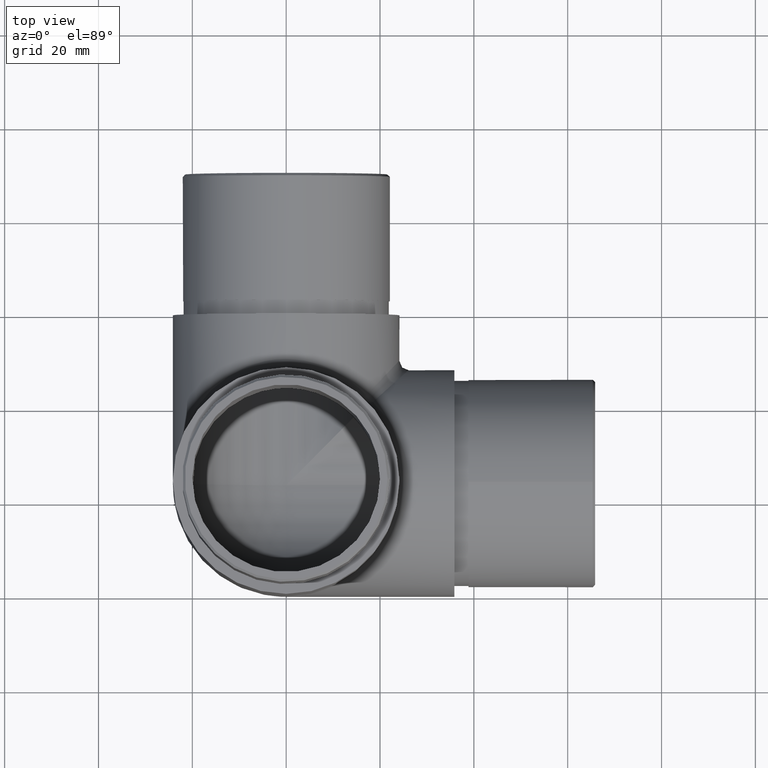
[diagram: clean part render]
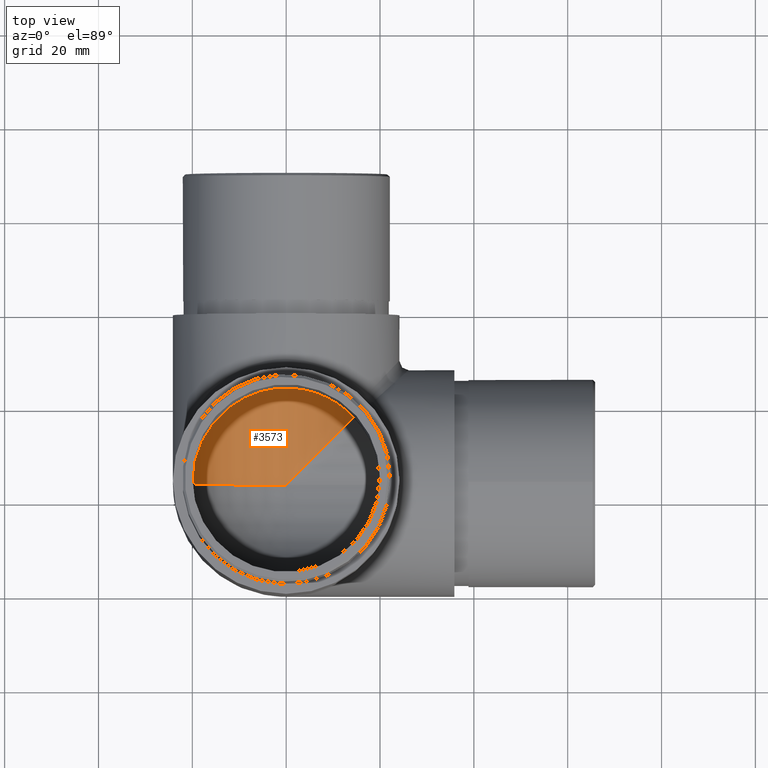
[diagram: same view with one face highlighted and labeled with its STEP entity id]
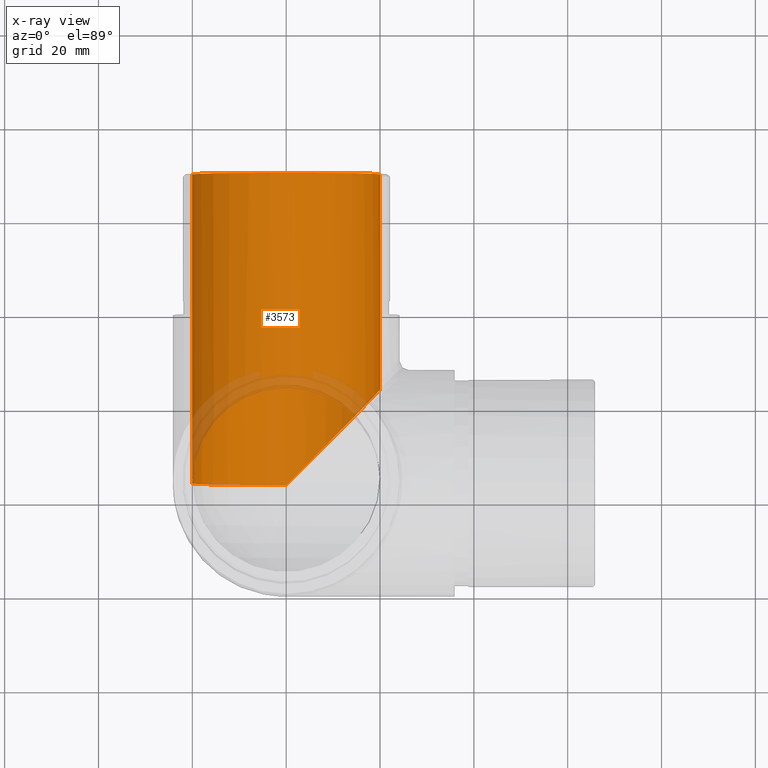
[diagram: x-ray of the same camera — body ghosted, the highlighted face saturated]
A machine part, top view. The second image highlights one B-rep face of the part: STEP entity #3573.
The next image is the same camera in x-ray: the body ghosted, the highlighted face saturated — about 7% of this face is hidden behind the body in this view.
In plain terms, the highlighted cylindrical surface (bore or boss wall) has radius 20 mm, axis along (-0, 1, -0).
Its self-contained STEP definition (entity closure, byte-faithful):
#5 = DIRECTION ( 'NONE',  ( 0.0000000000000000000, 0.0000000000000000000, 1.000000000000000000 ) ) ;
#563 = DIRECTION ( 'NONE',  ( -0.0000000000000000000, 1.000000000000000000, -0.0000000000000000000 ) ) ;
#656 = DIRECTION ( 'NONE',  ( 0.0000000000000000000, 0.0000000000000000000, 1.000000000000000000 ) ) ;
#945 = CARTESIAN_POINT ( 'NONE',  ( 20.00000000000000000, 90.00000000000000000, 24.14999999999996300 ) ) ;
#1288 = FACE_OUTER_BOUND ( 'NONE', #1629, .T. ) ;
#1629 = EDGE_LOOP ( 'NONE', ( #11823, #12114, #11708 ) ) ;
#1967 = DIRECTION ( 'NONE',  ( 1.000000000000000000, 0.0000000000000000000, 0.0000000000000000000 ) ) ;
#2274 = CARTESIAN_POINT ( 'NONE',  ( -20.00000000000000400, 45.08342864804461000, 45.08342864804460200 ) ) ;
#2680 = CARTESIAN_POINT ( 'NONE',  ( 14.14213562373094400, 38.29213562373096400, 38.29213562373095000 ) ) ;
#2729 = CIRCLE ( 'NONE', #12343, 20.00000000000000400 ) ;
#2960 =( BOUNDED_CURVE ( )  B_SPLINE_CURVE ( 3, ( #2680, #11549, #5557, #4694 ),
 .UNSPECIFIED., .F., .T. ) 
 B_SPLINE_CURVE_WITH_KNOTS ( ( 4, 4 ),
 ( 5.497787143782138000, 7.853981633974482800 ),
 .UNSPECIFIED. ) 
 CURVE ( )  GEOMETRIC_REPRESENTATION_ITEM ( )  RATIONAL_B_SPLINE_CURVE ( ( 1.000000000000000000, 0.5884556215767264800, 0.5884556215767264800, 1.000000000000000000 ) ) 
 REPRESENTATION_ITEM ( '' )  );
#3190 = CARTESIAN_POINT ( 'NONE',  ( -19.99999999999999600, 24.15000000000000600, 24.14999999999999900 ) ) ;
#3362 = VERTEX_POINT ( 'NONE', #945 ) ;
#3573 = ADVANCED_FACE ( 'NONE', ( #1288, #12698 ), #10676, .F. ) ;
#4462 = ORIENTED_EDGE ( 'NONE', *, *, #11320, .F. ) ;
#4492 = EDGE_LOOP ( 'NONE', ( #4462 ) ) ;
#4499 = AXIS2_PLACEMENT_3D ( 'NONE', #12614, #563, #656 ) ;
#4694 = CARTESIAN_POINT ( 'NONE',  ( 0.0000000000000000000, 24.15000000000000600, 4.149999999999997700 ) ) ;
#5072 = CARTESIAN_POINT ( 'NONE',  ( 0.0000000000000000000, 90.00000000000000000, 24.14999999999996300 ) ) ;
#5126 = VERTEX_POINT ( 'NONE', #5675 ) ;
#5557 = CARTESIAN_POINT ( 'NONE',  ( 20.93342864804462900, 45.08342864804462400, 4.149999999999999500 ) ) ;
#5675 = CARTESIAN_POINT ( 'NONE',  ( 14.14213562373094400, 38.29213562373096400, 38.29213562373095000 ) ) ;
#6860 = CARTESIAN_POINT ( 'NONE',  ( 0.0000000000000000000, 24.15000000000000600, 24.14999999999999100 ) ) ;
#7112 = CARTESIAN_POINT ( 'NONE',  ( -19.99999999999999600, 24.15000000000000600, 24.14999999999999900 ) ) ;
#7379 = EDGE_CURVE ( 'NONE', #5126, #12627, #2960, .T. ) ;
#7979 = DIRECTION ( 'NONE',  ( -0.0000000000000000000, -1.000000000000000000, 4.440892098500625200E-016 ) ) ;
#9466 = EDGE_CURVE ( 'NONE', #12627, #10465, #2729, .T. ) ;
#9834 = CARTESIAN_POINT ( 'NONE',  ( 0.0000000000000000000, 24.15000000000000600, 4.149999999999997700 ) ) ;
#9871 = DIRECTION ( 'NONE',  ( 0.0000000000000000000, 1.000000000000000000, 0.0000000000000000000 ) ) ;
#9904 = CIRCLE ( 'NONE', #12264, 20.00000000000000000 ) ;
#10280 = CARTESIAN_POINT ( 'NONE',  ( 14.14213562373094400, 38.29213562373096400, 38.29213562373095000 ) ) ;
#10465 = VERTEX_POINT ( 'NONE', #7112 ) ;
#10676 = CYLINDRICAL_SURFACE ( 'NONE', #4499, 20.00000000000000400 ) ;
#11246 = CARTESIAN_POINT ( 'NONE',  ( -0.6600337267861651200, 53.09430497424804700, 53.09430497424802600 ) ) ;
#11320 = EDGE_CURVE ( 'NONE', #3362, #3362, #9904, .T. ) ;
#11549 = CARTESIAN_POINT ( 'NONE',  ( 28.94430497424805200, 53.09430497424806100, 23.48996627321385900 ) ) ;
#11708 = ORIENTED_EDGE ( 'NONE', *, *, #7379, .F. ) ;
#11823 = ORIENTED_EDGE ( 'NONE', *, *, #11908, .F. ) ;
#11870 =( BOUNDED_CURVE ( )  B_SPLINE_CURVE ( 3, ( #3190, #2274, #11246, #10280 ),
 .UNSPECIFIED., .F., .F. ) 
 B_SPLINE_CURVE_WITH_KNOTS ( ( 4, 4 ),
 ( 4.712388980384689700, 7.068583470577033600 ),
 .UNSPECIFIED. ) 
 CURVE ( )  GEOMETRIC_REPRESENTATION_ITEM ( )  RATIONAL_B_SPLINE_CURVE ( ( 1.000000000000000000, 0.5884556215767268200, 0.5884556215767268200, 1.000000000000000000 ) ) 
 REPRESENTATION_ITEM ( '' )  );
#11908 = EDGE_CURVE ( 'NONE', #10465, #5126, #11870, .T. ) ;
#12114 = ORIENTED_EDGE ( 'NONE', *, *, #9466, .F. ) ;
#12264 = AXIS2_PLACEMENT_3D ( 'NONE', #5072, #7979, #1967 ) ;
#12343 = AXIS2_PLACEMENT_3D ( 'NONE', #6860, #9871, #5 ) ;
#12614 = CARTESIAN_POINT ( 'NONE',  ( 0.0000000000000000000, 24.15000000000000600, 24.14999999999999100 ) ) ;
#12627 = VERTEX_POINT ( 'NONE', #9834 ) ;
#12698 = FACE_OUTER_BOUND ( 'NONE', #4492, .T. ) ;